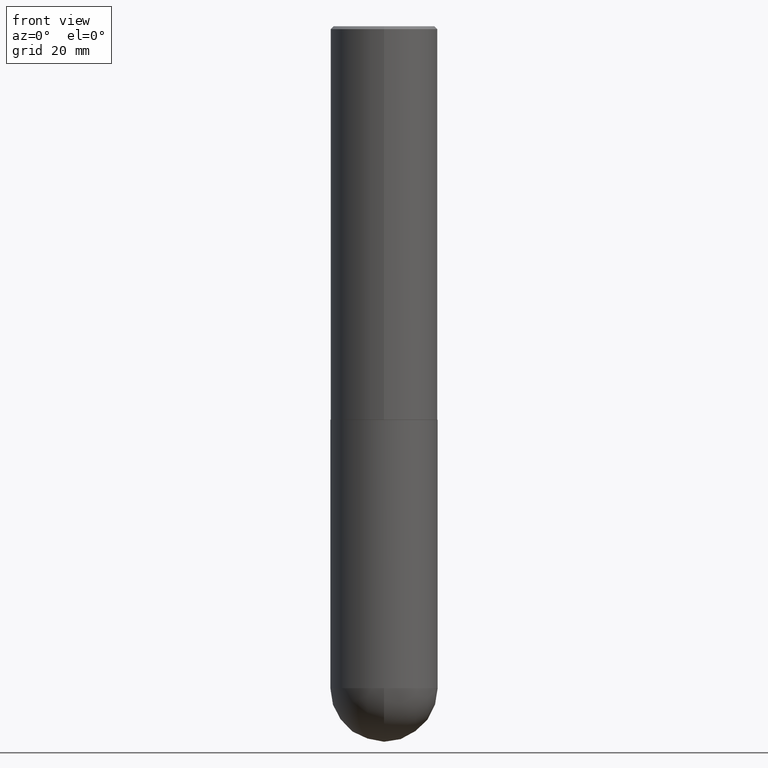
[diagram: clean part render]
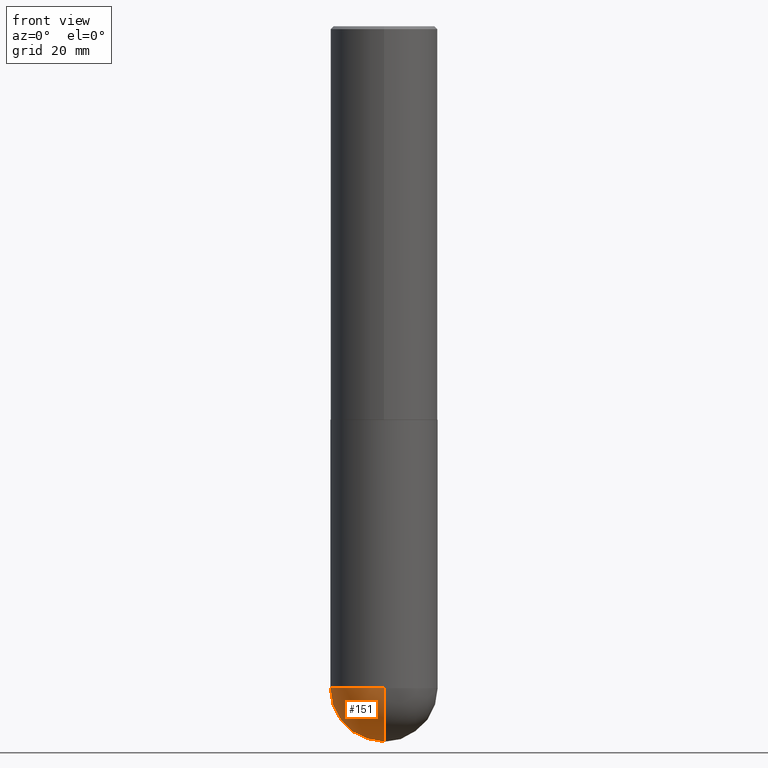
[diagram: same view with one face highlighted and labeled with its STEP entity id]
A machine part, front view. The second image highlights one B-rep face of the part: STEP entity #151.
In plain terms, the highlighted spherical surface has radius 9.525 mm.
Its self-contained STEP definition (entity closure, byte-faithful):
#45 = DIRECTION ( 'NONE',  ( 1.000000000000000000, -6.982962677686270655E-15, 0.000000000000000000 ) ) ;
#60 = EDGE_CURVE ( 'NONE', #395, #246, #330, .T. ) ;
#85 = AXIS2_PLACEMENT_3D ( 'NONE', #274, #228, #45 ) ;
#91 = VERTEX_POINT ( 'NONE', #296 ) ;
#97 = EDGE_CURVE ( 'NONE', #227, #395, #340, .T. ) ;
#108 = DIRECTION ( 'NONE',  ( 6.982962677686265922E-15, 1.000000000000000000, 0.000000000000000000 ) ) ;
#115 = ORIENTED_EDGE ( 'NONE', *, *, #60, .F. ) ;
#120 = DIRECTION ( 'NONE',  ( -1.000000000000000000, 6.982962677686266711E-15, -4.883557194083113462E-29 ) ) ;
#136 = DIRECTION ( 'NONE',  ( 1.000000000000000000, -6.982962677686270655E-15, 0.000000000000000000 ) ) ;
#138 = AXIS2_PLACEMENT_3D ( 'NONE', #254, #178, #260 ) ;
#147 = CARTESIAN_POINT ( 'NONE',  ( 1.097917345069237163E-28, -1.662228356028959886E-14, -4.625000000000000000 ) ) ;
#151 = ADVANCED_FACE ( 'NONE', ( #245 ), #302, .T. ) ;
#171 = ORIENTED_EDGE ( 'NONE', *, *, #97, .F. ) ;
#173 = ORIENTED_EDGE ( 'NONE', *, *, #217, .T. ) ;
#178 = DIRECTION ( 'NONE',  ( -1.000000000000000000, 7.105427357601001070E-15, -4.926315508542082329E-29 ) ) ;
#188 = DIRECTION ( 'NONE',  ( 1.000000000000000000, -6.982962677686265922E-15, 4.883557194083112340E-29 ) ) ;
#212 = CARTESIAN_POINT ( 'NONE',  ( 2.618611004132463218E-15, 0.3749999999999838463, -4.625000000000000888 ) ) ;
#213 = AXIS2_PLACEMENT_3D ( 'NONE', #234, #365, #136 ) ;
#215 = CARTESIAN_POINT ( 'NONE',  ( -2.664535259100265651E-15, -0.3750000000000165978, -4.624999999999999112 ) ) ;
#217 = EDGE_CURVE ( 'NONE', #91, #246, #357, .T. ) ;
#221 = CARTESIAN_POINT ( 'NONE',  ( -0.3750000000000001110, -1.021030217788372352E-14, -4.625000000000000000 ) ) ;
#227 = VERTEX_POINT ( 'NONE', #212 ) ;
#228 = DIRECTION ( 'NONE',  ( -2.445468806185136597E-29, 3.491481338843145583E-15, 1.000000000000000000 ) ) ;
#234 = CARTESIAN_POINT ( 'NONE',  ( 1.131029322860625676E-28, -1.614810119214955014E-14, -4.625000000000000000 ) ) ;
#245 = FACE_OUTER_BOUND ( 'NONE', #327, .T. ) ;
#246 = VERTEX_POINT ( 'NONE', #215 ) ;
#254 = CARTESIAN_POINT ( 'NONE',  ( 1.097917345069237163E-28, -1.662228356028959886E-14, -4.625000000000000000 ) ) ;
#260 = DIRECTION ( 'NONE',  ( -7.105427357600999492E-15, -1.000000000000000000, 0.000000000000000000 ) ) ;
#269 = CARTESIAN_POINT ( 'NONE',  ( 1.097917345069237163E-28, -1.662228356028959886E-14, -4.625000000000000000 ) ) ;
#272 = AXIS2_PLACEMENT_3D ( 'NONE', #147, #120, #369 ) ;
#274 = CARTESIAN_POINT ( 'NONE',  ( 1.131029322860625676E-28, -1.614810119214955014E-14, -4.625000000000000000 ) ) ;
#294 = AXIS2_PLACEMENT_3D ( 'NONE', #269, #188, #108 ) ;
#296 = CARTESIAN_POINT ( 'NONE',  ( 1.191225862093391378E-28, -1.790862693487176734E-14, -5.000000000000000000 ) ) ;
#302 = SPHERICAL_SURFACE ( 'NONE', #272, 0.3750000000000003886 ) ;
#320 = CIRCLE ( 'NONE', #294, 0.3750000000000003886 ) ;
#325 = ORIENTED_EDGE ( 'NONE', *, *, #335, .F. ) ;
#327 = EDGE_LOOP ( 'NONE', ( #325, #173, #115, #171 ) ) ;
#330 = CIRCLE ( 'NONE', #213, 0.3750000000000001110 ) ;
#335 = EDGE_CURVE ( 'NONE', #91, #227, #320, .T. ) ;
#340 = CIRCLE ( 'NONE', #85, 0.3750000000000001110 ) ;
#357 = CIRCLE ( 'NONE', #138, 0.3750000000000003886 ) ;
#365 = DIRECTION ( 'NONE',  ( -2.445468806185136597E-29, 3.491481338843145583E-15, 1.000000000000000000 ) ) ;
#369 = DIRECTION ( 'NONE',  ( 6.982962677686266711E-15, 1.000000000000000000, -2.913971193241878005E-15 ) ) ;
#395 = VERTEX_POINT ( 'NONE', #221 ) ;